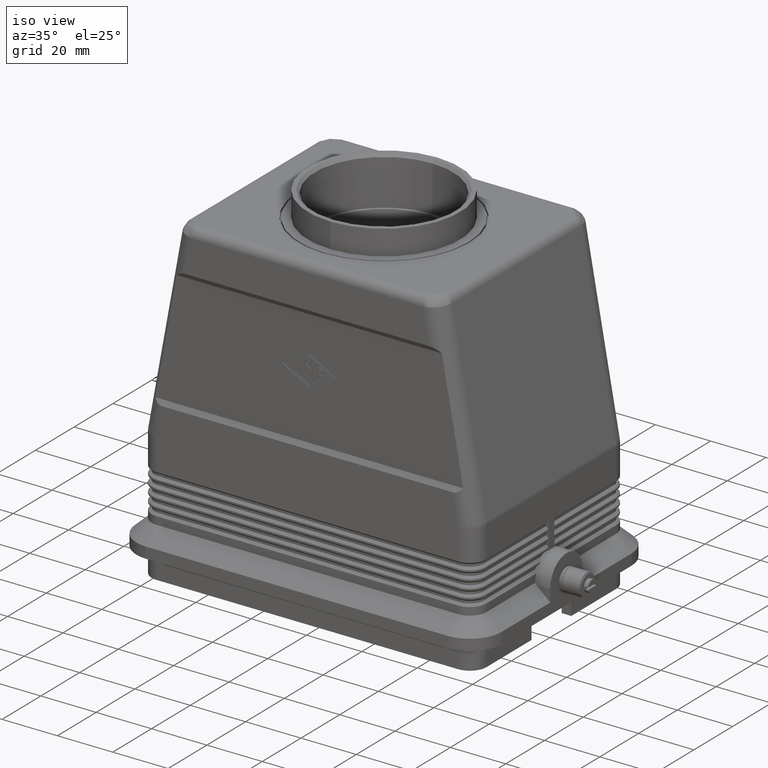
[diagram: clean part render]
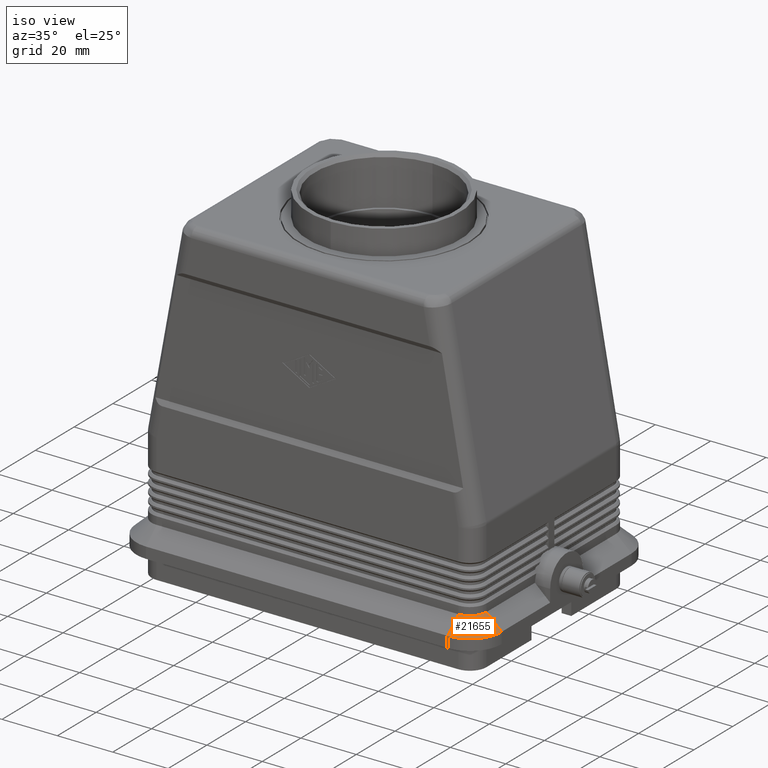
[diagram: same view with one face highlighted and labeled with its STEP entity id]
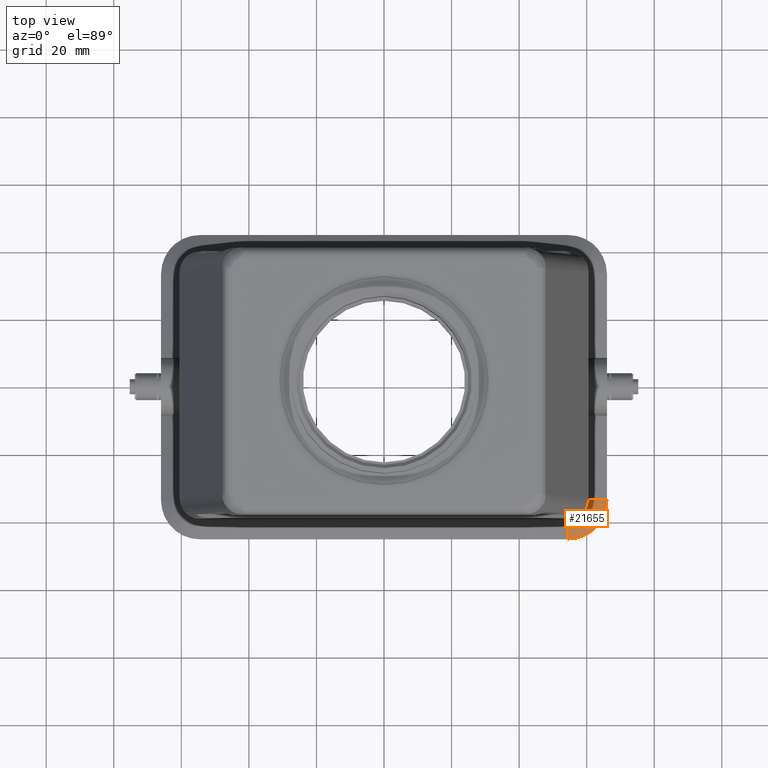
[diagram: same view with one face highlighted and labeled with its STEP entity id]
A machine part, iso view. The second image highlights one B-rep face of the part: STEP entity #21655.
A second angle (top view) of the same face is appended — the face is thin or edge-on in the first view.
In plain terms, the highlighted conical surface has half-angle 47.726 deg.
Its self-contained STEP definition (entity closure, byte-faithful):
#883=CARTESIAN_POINT('',(58.742640687119298,-37.742640687119291,18.0));
#884=VERTEX_POINT('',#883);
#900=CARTESIAN_POINT('',(54.500000000000014,-39.500000000000014,18.0));
#901=VERTEX_POINT('',#900);
#908=CARTESIAN_POINT('',(54.500000000000014,-33.500000000000000,18.0));
#909=DIRECTION('',(0.0,0.0,1.000000000000000));
#910=DIRECTION('',(0.707106781186547,-0.707106781186548,0.0));
#911=AXIS2_PLACEMENT_3D('',#908,#909,#910);
#912=CIRCLE('',#911,6.000000000000001);
#913=EDGE_CURVE('',#901,#884,#912,.T.);
#13884=CARTESIAN_POINT('',(60.500000000000028,-33.500000000000000,18.0));
#13885=VERTEX_POINT('',#13884);
#13892=CARTESIAN_POINT('',(66.0,-33.500000000000000,13.0));
#13893=VERTEX_POINT('',#13892);
#13894=CARTESIAN_POINT('',(66.0,-33.500000000000000,13.0));
#13895=DIRECTION('',(-0.739940073395942,0.0,0.672672793996314));
#13896=VECTOR('',#13895,7.433034373659232);
#13897=LINE('',#13894,#13896);
#13898=EDGE_CURVE('',#13893,#13885,#13897,.T.);
#21407=CARTESIAN_POINT('',(54.500000000000014,-33.500000000000000,18.0));
#21408=DIRECTION('',(0.0,0.0,1.000000000000000));
#21409=DIRECTION('',(0.707106781186547,-0.707106781186548,0.0));
#21410=AXIS2_PLACEMENT_3D('',#21407,#21408,#21409);
#21411=CIRCLE('',#21410,6.000000000000001);
#21412=EDGE_CURVE('',#884,#13885,#21411,.T.);
#21619=CARTESIAN_POINT('',(54.500000000000014,-44.999999999999993,13.0));
#21620=VERTEX_POINT('',#21619);
#21621=CARTESIAN_POINT('',(54.500000000000014,-33.500000000000000,13.0));
#21622=DIRECTION('',(0.0,0.0,1.0));
#21623=DIRECTION('',(0.0,-1.0,0.0));
#21624=AXIS2_PLACEMENT_3D('',#21621,#21622,#21623);
#21625=CIRCLE('',#21624,11.499999999999989);
#21626=EDGE_CURVE('',#21620,#13893,#21625,.T.);
#21638=CARTESIAN_POINT('',(54.500000000000014,-33.500000000000000,15.499999999999998));
#21639=DIRECTION('',(0.0,0.0,-1.0));
#21640=DIRECTION('',(0.0,-1.0,0.0));
#21641=AXIS2_PLACEMENT_3D('',#21638,#21639,#21640);
#21642=CONICAL_SURFACE('',#21641,8.749999999999996,47.726310993906232);
#21643=ORIENTED_EDGE('',*,*,#13898,.T.);
#21644=ORIENTED_EDGE('',*,*,#21412,.F.);
#21645=ORIENTED_EDGE('',*,*,#913,.F.);
#21646=CARTESIAN_POINT('',(54.500000000000014,-44.999999999999993,13.0));
#21647=DIRECTION('',(0.0,0.739940073395942,0.672672793996314));
#21648=VECTOR('',#21647,7.433034373659237);
#21649=LINE('',#21646,#21648);
#21650=EDGE_CURVE('',#21620,#901,#21649,.T.);
#21651=ORIENTED_EDGE('',*,*,#21650,.F.);
#21652=ORIENTED_EDGE('',*,*,#21626,.T.);
#21653=EDGE_LOOP('',(#21643,#21644,#21645,#21651,#21652));
#21654=FACE_OUTER_BOUND('',#21653,.T.);
#21655=ADVANCED_FACE('',(#21654),#21642,.T.);